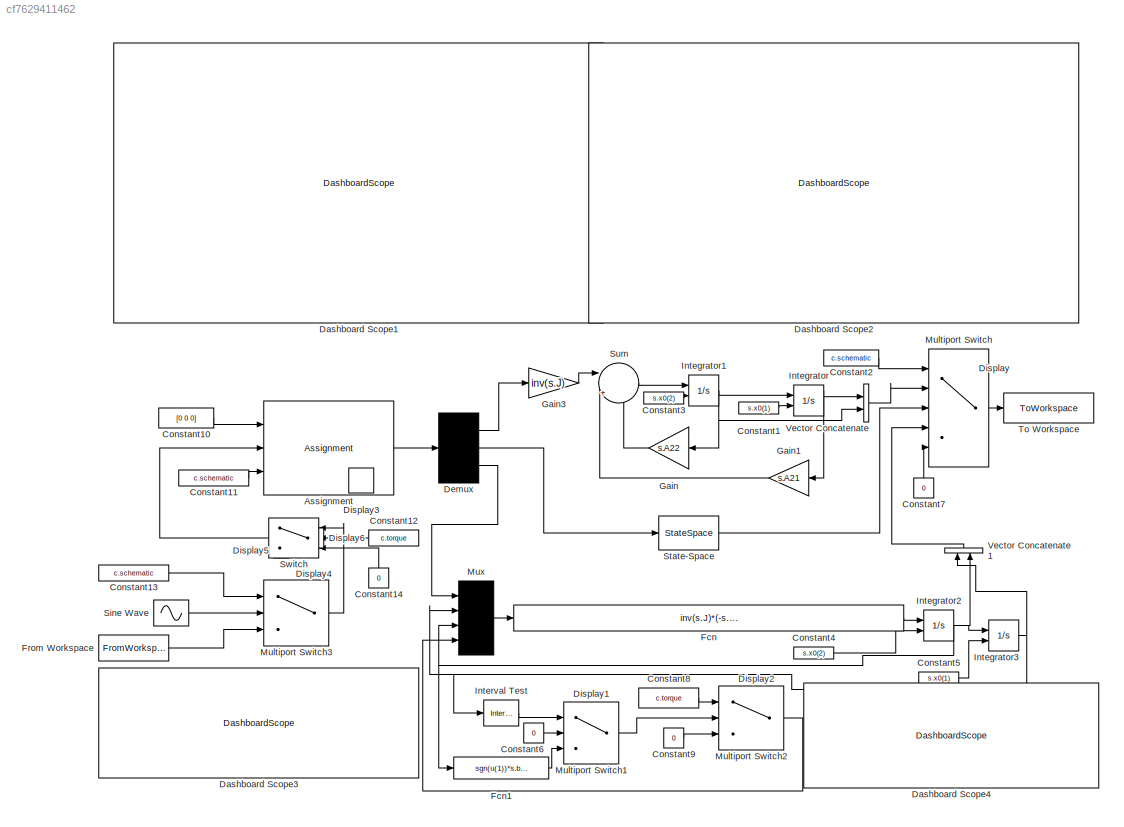
MODEL slx_cf7629411462
KIND model
CONFIG AbsTol = auto
CONFIG EnableMultiTasking = off
CONFIG FixedStep = auto
CONFIG MaxStep = auto
CONFIG MinStep = auto
CONFIG RelTol = 1e-3
CONFIG SampleTimeConstraint = Unconstrained
CONFIG Solver = VariableStepAuto
CONFIG SolverName = VariableStepAuto
CONFIG StartTime = 0.0
CONFIG StopTime = c.stoptime
BLOCK [Assignment] Assignment
  DiagnosticForDimensions = Warning
  IndexOptions = Index vector (port)
  Indices = [5 6 10]
  OutputSizes = 1
  Ports = [3, 1]
BLOCK [Constant] Constant1
  SampleTime = c.samptime
  Value = s.x0(1)
BLOCK [Constant] Constant10
  SampleTime = c.samptime
  Value = [0 0 0]
BLOCK [Constant] Constant11
  SampleTime = c.samptime
  Value = c.schematic
BLOCK [Constant] Constant12
  OutDataTypeStr = boolean
  SampleTime = c.samptime
  Value = c.torque
BLOCK [Constant] Constant13
  SampleTime = c.samptime
  Value = c.schematic
BLOCK [Constant] Constant14
  SampleTime = c.samptime
  Value = 0
BLOCK [Constant] Constant2
  SampleTime = c.samptime
  Value = c.schematic
BLOCK [Constant] Constant3
  SampleTime = c.samptime
  Value = s.x0(2)
BLOCK [Constant] Constant4
  SampleTime = c.samptime
  Value = s.x0(2)
BLOCK [Constant] Constant5
  SampleTime = c.samptime
  Value = s.x0(1)
BLOCK [Constant] Constant6
  SampleTime = c.samptime
  Value = 0
BLOCK [Constant] Constant7
  SampleTime = c.samptime
  Value = 0
BLOCK [Constant] Constant8
  SampleTime = c.samptime
  Value = c.torque
BLOCK [Constant] Constant9
  SampleTime = c.samptime
  Value = 0
BLOCK [DashboardScope] Dashboard Scope1
BLOCK [DashboardScope] Dashboard Scope2
BLOCK [DashboardScope] Dashboard Scope3
BLOCK [DashboardScope] Dashboard Scope4
BLOCK [Demux] Demux
  Outputs = 3
  Ports = [1, 3]
BLOCK [DisplayBlock] Display
  Format = short
  LabelPosition = Hide
  Transparency = 1
BLOCK [DisplayBlock] Display1
  Format = short
  LabelPosition = Hide
  Transparency = 1
BLOCK [DisplayBlock] Display2
  Format = short
  LabelPosition = Hide
  Transparency = 1
BLOCK [DisplayBlock] Display3
  Format = short
  LabelPosition = Hide
  Transparency = 1
BLOCK [DisplayBlock] Display4
  Format = short
  LabelPosition = Hide
  Transparency = 1
BLOCK [DisplayBlock] Display5
  Format = short
  LabelPosition = Hide
  Transparency = 1
BLOCK [DisplayBlock] Display6
  Format = short
  LabelPosition = Hide
  Transparency = 1
BLOCK [Fcn] Fcn
  Expr = inv(s.J)*(-s.beta*u(3)-s.k*u(2)*(1+(u(2)^2)/100)+(s.m*s.l+s.L*s.M/2)*s.g*sin(u(2))+u(4))
BLOCK [Fcn] Fcn1
  Expr = sgn(u(1))*s.beta*50
BLOCK [FromWorkspace] From Workspace
  OutputAfterFinalValue = Holding final value
  SampleTime = c.samptime
  VariableName = timeseries(0)
  ZeroCross = on
BLOCK [Gain] Gain
  Gain = s.A22
  OutDataTypeStr = Inherit: Inherit via internal rule
  ParamDataTypeStr = Inherit: Inherit via internal rule
  SaturateOnIntegerOverflow = off
BLOCK [Gain] Gain1
  Gain = s.A21
  OutDataTypeStr = Inherit: Inherit via internal rule
  ParamDataTypeStr = Inherit: Inherit via internal rule
  SaturateOnIntegerOverflow = off
BLOCK [Gain] Gain3
  Gain = inv(s.J)
  OutDataTypeStr = Inherit: Inherit via internal rule
  ParamDataTypeStr = Inherit: Inherit via internal rule
  SaturateOnIntegerOverflow = off
BLOCK [Integrator] Integrator
  InitialConditionSource = external
  Ports = [2, 1]
BLOCK [Integrator] Integrator1
  IgnoreLimit = on
  InitialConditionSource = external
  Ports = [2, 1]
  ZeroCross = off
BLOCK [Integrator] Integrator2
  IgnoreLimit = on
  InitialConditionSource = external
  Ports = [2, 1]
  ZeroCross = off
BLOCK [Integrator] Integrator3
  InitialConditionSource = external
  Ports = [2, 1]
BLOCK [Reference] Interval Test  REF=simulink/Logic and Bit
Operations/Interval Test
  Ports = [1, 1]
  SourceBlock = simulink/Logic and Bit\nOperations/Interval Test
  SourceProductBaseCode = SL
  SourceType = Interval Test
BLOCK [MultiPortSwitch] Multiport Switch
  DataPortForDefault = Additional data port
  DataPortOrder = Specify indices
  DiagnosticForDefault = None
  InputSameDT = off
  Ports = [5, 1]
  SaturateOnIntegerOverflow = off
BLOCK [MultiPortSwitch] Multiport Switch1
  DataPortIndices = {0,1}
  DataPortOrder = Specify indices
  DiagnosticForDefault = None
  InputSameDT = off
  Ports = [3, 1]
  SaturateOnIntegerOverflow = off
BLOCK [MultiPortSwitch] Multiport Switch2
  DataPortIndices = {1,0}
  DataPortOrder = Specify indices
  DiagnosticForDefault = None
  InputSameDT = off
  Ports = [3, 1]
  SaturateOnIntegerOverflow = off
BLOCK [MultiPortSwitch] Multiport Switch3
  DataPortIndices = {[2],[1,3,4]}
  DataPortOrder = Specify indices
  DiagnosticForDefault = None
  InputSameDT = off
  OutDataTypeStr = double
  Ports = [3, 1]
  SaturateOnIntegerOverflow = off
BLOCK [Mux] Mux
  Ports = [4, 1]
BLOCK [Sin] Sine Wave
  Amplitude = 0.05
  Frequency = c.freq
  Ports = [0, 1]
  SampleTime = c.samptime
  Samples = 200
BLOCK [StateSpace] State-Space
  A = s.sys.A
  B = s.sys.B
  C = s.sys.C
  D = s.sys.D
  InitialCondition = s.x0
  Ports = [1, 1]
BLOCK [Sum] Sum
  IconShape = round
  InputSameDT = off
  Inputs = ||+++
  OutDataTypeStr = Inherit: Inherit via internal rule
  Ports = [3, 1]
  SaturateOnIntegerOverflow = off
BLOCK [Switch] Switch
  Criteria = u2 > Threshold
  InputSameDT = off
  SaturateOnIntegerOverflow = off
BLOCK [ToWorkspace] To Workspace
  FixptAsFi = on
  MaxDataPoints = inf
  Ports = [1]
  SampleTime = c.samptime
  SaveFormat = Timeseries
  VariableName = simout
BLOCK [Concatenate] Vector Concatenate
  Ports = [2, 1]
BLOCK [Concatenate] Vector Concatenate1
  Ports = [2, 1]
LINE Assignment:1 -> Demux:1
LINE Constant10:1 -> Assignment:1
LINE Constant11:1 -> Assignment:3
LINE Constant12:1 -> Switch:2
LINE Constant13:1 -> Multiport Switch3:1
LINE Constant14:1 -> Switch:3
LINE Constant1:1 -> Integrator:2
LINE Constant2:1 -> Multiport Switch:1
LINE Constant3:1 -> Integrator1:2
LINE Constant4:1 -> Integrator2:2
LINE Constant5:1 -> Integrator3:2
LINE Constant6:1 -> Multiport Switch1:2
LINE Constant7:1 -> Multiport Switch:5
LINE Constant8:1 -> Multiport Switch2:1
LINE Constant9:1 -> Multiport Switch2:3
LINE Demux:1 -> Gain3:1
LINE Demux:2 -> State-Space:1
LINE Demux:3 -> Mux:1
LINE Fcn1:1 -> Multiport Switch1:3
LINE Fcn:1 -> Integrator2:1
LINE From Workspace:1 -> Multiport Switch3:3
LINE Gain1:1 -> Sum:2
LINE Gain3:1 -> Sum:1
LINE Gain:1 -> Sum:3
NET Integrator1:1 -> Gain:1, Integrator:1, Vector Concatenate:2
NET Integrator2:1 -> Fcn1:1, Integrator3:1, Mux:3, Vector Concatenate1:2
NET Integrator3:1 -> Interval Test:1, Mux:2, Vector Concatenate1:1
NET Integrator:1 -> Gain1:1, Vector Concatenate:1
LINE Interval Test:1 -> Multiport Switch1:1
LINE Multiport Switch1:1 -> Multiport Switch2:2
LINE Multiport Switch2:1 -> Mux:4
LINE Multiport Switch3:1 -> Switch:1
LINE Multiport Switch:1 -> To Workspace:1
LINE Mux:1 -> Fcn:1
LINE Sine Wave:1 -> Multiport Switch3:2
LINE State-Space:1 -> Multiport Switch:3
LINE Sum:1 -> Integrator1:1
LINE Switch:1 -> Assignment:2
LINE Vector Concatenate1:1 -> Multiport Switch:4
LINE Vector Concatenate:1 -> Multiport Switch:2
note: NET lines group one-source signal fan-out (src -> all destinations, sorted); 1:1 wires keep LINE
